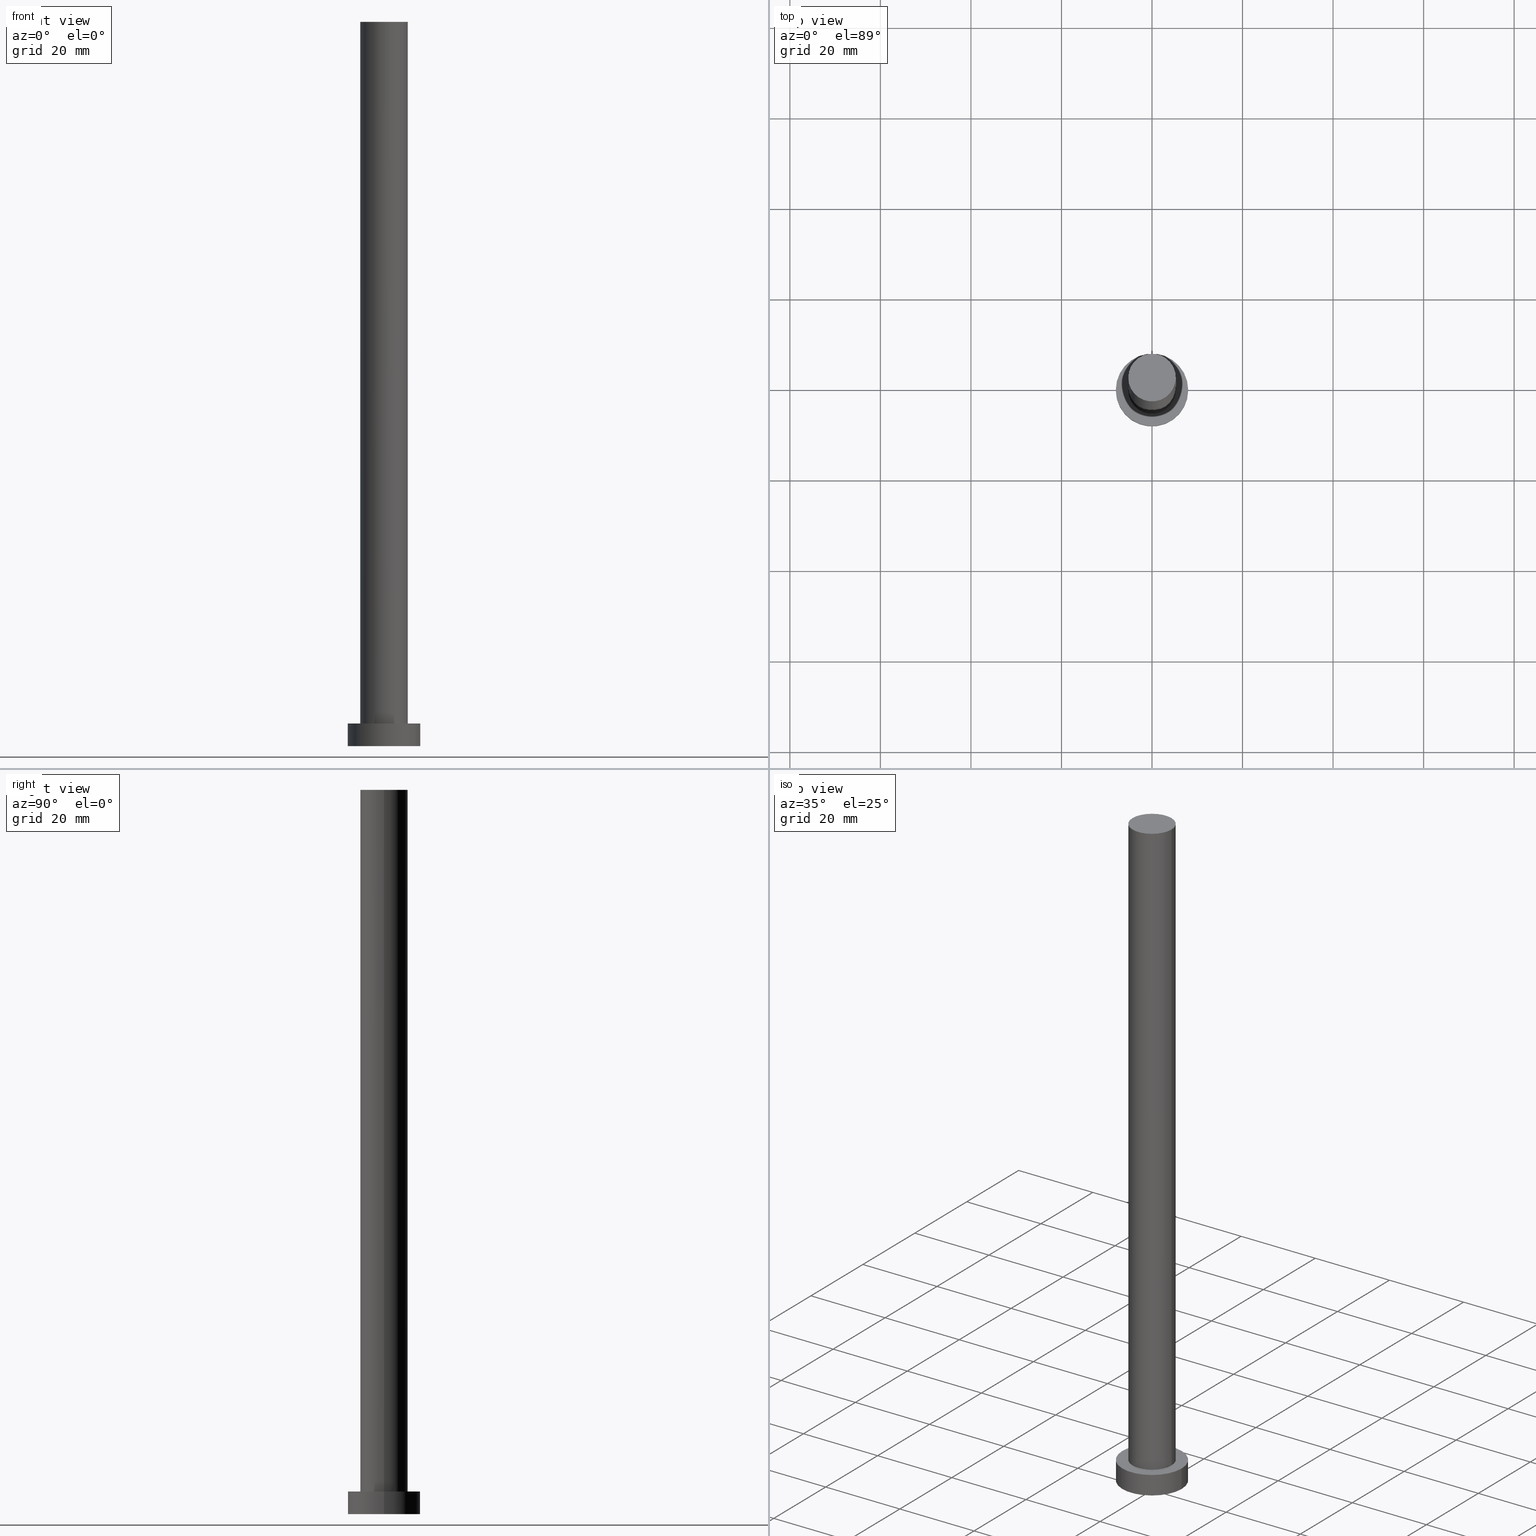
[diagram: canonical four-view strip — front | top / right | iso, engineering-drawing reading convention]
A machine part, canonical four-view strip (front | top / right | iso — engineering-drawing reading convention). The complete STEP part file that produces these views, byte-faithful:
ISO-10303-21;
HEADER;
FILE_DESCRIPTION (( 'STEP AP203' ),
    '1' );
FILE_NAME ('19fd.STEP',
    '2023-02-13T11:12:26',
    ( '' ),
    ( '' ),
    'SwSTEP 2.0',
    'SolidWorks 2019',
    '' );
FILE_SCHEMA (( 'CONFIG_CONTROL_DESIGN' ));
ENDSEC;

DATA;
#1 = APPROVAL_ROLE ( '' ) ;
#2 = CARTESIAN_POINT ( 'NONE',  ( 8.000000000000000000, 9.797174393178825657E-16, 5.000000000000000000 ) ) ;
#3 = EDGE_CURVE ( 'NONE', #149, #250, #206, .T. ) ;
#4 = CARTESIAN_POINT ( 'NONE',  ( 0.000000000000000000, 0.000000000000000000, 160.0000000000000000 ) ) ;
#5 = LOCAL_TIME ( 12, 12, 26.00000000000000000, #114 ) ;
#6 = FACE_OUTER_BOUND ( 'NONE', #186, .T. ) ;
#7 = CARTESIAN_POINT ( 'NONE',  ( 0.000000000000000000, 0.000000000000000000, 160.0000000000000000 ) ) ;
#8 = ORIENTED_EDGE ( 'NONE', *, *, #13, .T. ) ;
#9 = CIRCLE ( 'NONE', #68, 5.250000000000000888 ) ;
#10 = DIRECTION ( 'NONE',  ( 1.000000000000000000, 0.000000000000000000, -0.000000000000000000 ) ) ;
#11 = DIRECTION ( 'NONE',  ( 0.000000000000000000, 0.000000000000000000, 1.000000000000000000 ) ) ;
#12 = SECURITY_CLASSIFICATION_LEVEL ( 'unclassified' ) ;
#13 = EDGE_CURVE ( 'NONE', #95, #154, #42, .T. ) ;
#14 = APPLICATION_PROTOCOL_DEFINITION ( 'international standard', 'config_control_design', 1994, #224 ) ;
#15 = CIRCLE ( 'NONE', #152, 8.000000000000000000 ) ;
#16 = PERSON_AND_ORGANIZATION_ROLE ( 'creator' ) ;
#17 = CC_DESIGN_DATE_AND_TIME_ASSIGNMENT ( #150, #109, ( #248 ) ) ;
#18 = APPROVAL_PERSON_ORGANIZATION ( #174, #225, #193 ) ;
#19 = LINE ( 'NONE', #189, #131 ) ;
#20 = DIRECTION ( 'NONE',  ( 0.000000000000000000, 0.000000000000000000, 1.000000000000000000 ) ) ;
#21 = DIRECTION ( 'NONE',  ( -1.000000000000000000, 0.000000000000000000, 0.000000000000000000 ) ) ;
#22 = FACE_OUTER_BOUND ( 'NONE', #128, .T. ) ;
#23 = VECTOR ( 'NONE', #144, 1000.000000000000000 ) ;
#24 = EDGE_CURVE ( 'NONE', #154, #95, #191, .T. ) ;
#25 = ADVANCED_FACE ( 'NONE', ( #99 ), #240, .T. ) ;
#26 = CARTESIAN_POINT ( 'NONE',  ( -5.250000000000000888, 0.000000000000000000, 160.0000000000000000 ) ) ;
#27 = CIRCLE ( 'NONE', #181, 5.250000000000000888 ) ;
#28 = EDGE_CURVE ( 'NONE', #56, #54, #27, .T. ) ;
#29 = ORIENTED_EDGE ( 'NONE', *, *, #24, .F. ) ;
#30 = PERSON_AND_ORGANIZATION ( #233, #88 ) ;
#31 = ORIENTED_EDGE ( 'NONE', *, *, #78, .F. ) ;
#32 = CARTESIAN_POINT ( 'NONE',  ( 0.000000000000000000, 0.000000000000000000, 0.000000000000000000 ) ) ;
#33 = ORIENTED_EDGE ( 'NONE', *, *, #182, .F. ) ;
#34 = CALENDAR_DATE ( 2023, 13, 2 ) ;
#35 =( GEOMETRIC_REPRESENTATION_CONTEXT ( 3 ) GLOBAL_UNCERTAINTY_ASSIGNED_CONTEXT ( ( #115 ) ) GLOBAL_UNIT_ASSIGNED_CONTEXT ( ( #165, #87, #245 ) ) REPRESENTATION_CONTEXT ( 'NONE', 'WORKASPACE' ) );
#36 = CC_DESIGN_PERSON_AND_ORGANIZATION_ASSIGNMENT ( #168, #172, ( #248 ) ) ;
#37 = DIRECTION ( 'NONE',  ( 1.000000000000000000, 0.000000000000000000, 0.000000000000000000 ) ) ;
#38 = ADVANCED_FACE ( 'NONE', ( #162 ), #81, .T. ) ;
#39 = DIRECTION ( 'NONE',  ( -0.000000000000000000, -0.000000000000000000, -1.000000000000000000 ) ) ;
#40 = AXIS2_PLACEMENT_3D ( 'NONE', #217, #39, #21 ) ;
#41 = DIRECTION ( 'NONE',  ( 1.000000000000000000, 0.000000000000000000, 0.000000000000000000 ) ) ;
#42 = CIRCLE ( 'NONE', #232, 8.000000000000000000 ) ;
#43 = ADVANCED_FACE ( 'NONE', ( #119 ), #179, .T. ) ;
#44 = CYLINDRICAL_SURFACE ( 'NONE', #159, 5.250000000000000888 ) ;
#45 = DIRECTION ( 'NONE',  ( -1.000000000000000000, 0.000000000000000000, 0.000000000000000000 ) ) ;
#46 = ORIENTED_EDGE ( 'NONE', *, *, #182, .T. ) ;
#47 = CARTESIAN_POINT ( 'NONE',  ( 0.000000000000000000, 0.000000000000000000, 5.000000000000000000 ) ) ;
#48 = EDGE_CURVE ( 'NONE', #250, #149, #9, .T. ) ;
#49 = ORIENTED_EDGE ( 'NONE', *, *, #3, .T. ) ;
#50 = AXIS2_PLACEMENT_3D ( 'NONE', #47, #11, #70 ) ;
#51 = LOCAL_TIME ( 12, 12, 26.00000000000000000, #234 ) ;
#52 = DIRECTION ( 'NONE',  ( 1.000000000000000000, 0.000000000000000000, 0.000000000000000000 ) ) ;
#53 = APPROVAL_ROLE ( '' ) ;
#54 = VERTEX_POINT ( 'NONE', #219 ) ;
#55 = PERSON_AND_ORGANIZATION ( #233, #88 ) ;
#56 = VERTEX_POINT ( 'NONE', #161 ) ;
#57 = CALENDAR_DATE ( 2023, 13, 2 ) ;
#58 = ORIENTED_EDGE ( 'NONE', *, *, #146, .T. ) ;
#59 = ORIENTED_EDGE ( 'NONE', *, *, #82, .F. ) ;
#60 = PERSON_AND_ORGANIZATION_ROLE ( 'design_supplier' ) ;
#61 = AXIS2_PLACEMENT_3D ( 'NONE', #163, #20, #203 ) ;
#62 = ORIENTED_EDGE ( 'NONE', *, *, #82, .T. ) ;
#63 = DIRECTION ( 'NONE',  ( 0.000000000000000000, 0.000000000000000000, 1.000000000000000000 ) ) ;
#64 = SECURITY_CLASSIFICATION ( '', '', #12 ) ;
#65 = VERTEX_POINT ( 'NONE', #2 ) ;
#66 = DIRECTION ( 'NONE',  ( 1.000000000000000000, 0.000000000000000000, 0.000000000000000000 ) ) ;
#67 = DIRECTION ( 'NONE',  ( 0.000000000000000000, 0.000000000000000000, 1.000000000000000000 ) ) ;
#68 = AXIS2_PLACEMENT_3D ( 'NONE', #141, #67, #41 ) ;
#69 = CC_DESIGN_APPROVAL ( #122, ( #215 ) ) ;
#70 = DIRECTION ( 'NONE',  ( 1.000000000000000000, 0.000000000000000000, 0.000000000000000000 ) ) ;
#71 = VECTOR ( 'NONE', #201, 1000.000000000000000 ) ;
#72 = CARTESIAN_POINT ( 'NONE',  ( -8.000000000000000000, 0.000000000000000000, 5.000000000000000000 ) ) ;
#73 = CARTESIAN_POINT ( 'NONE',  ( -8.000000000000000000, 0.000000000000000000, 0.000000000000000000 ) ) ;
#74 = COORDINATED_UNIVERSAL_TIME_OFFSET ( 1, 0, .AHEAD. ) ;
#75 = DATE_TIME_ROLE ( 'classification_date' ) ;
#76 = DIRECTION ( 'NONE',  ( 0.000000000000000000, 0.000000000000000000, 1.000000000000000000 ) ) ;
#77 = DATE_AND_TIME ( #132, #51 ) ;
#78 = EDGE_CURVE ( 'NONE', #250, #56, #120, .T. ) ;
#79 = CARTESIAN_POINT ( 'NONE',  ( -5.250000000000000888, 0.000000000000000000, 160.0000000000000000 ) ) ;
#80 = CC_DESIGN_DATE_AND_TIME_ASSIGNMENT ( #196, #75, ( #64 ) ) ;
#81 = CYLINDRICAL_SURFACE ( 'NONE', #243, 5.250000000000000888 ) ;
#82 = EDGE_CURVE ( 'NONE', #249, #65, #15, .T. ) ;
#83 = DIRECTION ( 'NONE',  ( 1.000000000000000000, 0.000000000000000000, 0.000000000000000000 ) ) ;
#84 = CARTESIAN_POINT ( 'NONE',  ( 0.000000000000000000, 0.000000000000000000, 0.000000000000000000 ) ) ;
#85 = ADVANCED_BREP_SHAPE_REPRESENTATION ( '19fd', ( #241, #107 ), #35 ) ;
#86 = DIRECTION ( 'NONE',  ( 0.000000000000000000, 0.000000000000000000, 1.000000000000000000 ) ) ;
#87 =( NAMED_UNIT ( * ) PLANE_ANGLE_UNIT ( ) SI_UNIT ( $, .RADIAN. ) );
#88 = ORGANIZATION ( 'NEUR�EN�', 'NEUR�EN�', '' ) ;
#89 = PLANE ( 'NONE',  #244 ) ;
#90 = ORIENTED_EDGE ( 'NONE', *, *, #197, .F. ) ;
#91 = PERSON_AND_ORGANIZATION ( #233, #88 ) ;
#92 = DATE_AND_TIME ( #231, #5 ) ;
#93 = EDGE_LOOP ( 'NONE', ( #237, #59, #106, #208 ) ) ;
#94 = DIRECTION ( 'NONE',  ( 1.000000000000000000, 0.000000000000000000, 0.000000000000000000 ) ) ;
#95 = VERTEX_POINT ( 'NONE', #238 ) ;
#96 = AXIS2_PLACEMENT_3D ( 'NONE', #160, #136, #199 ) ;
#97 = DIRECTION ( 'NONE',  ( -1.000000000000000000, 0.000000000000000000, 0.000000000000000000 ) ) ;
#98 = CC_DESIGN_APPROVAL ( #225, ( #248 ) ) ;
#99 = FACE_OUTER_BOUND ( 'NONE', #93, .T. ) ;
#100 = DIRECTION ( 'NONE',  ( 1.000000000000000000, 0.000000000000000000, 0.000000000000000000 ) ) ;
#101 = LOCAL_TIME ( 12, 12, 26.00000000000000000, #236 ) ;
#102 = FACE_OUTER_BOUND ( 'NONE', #151, .T. ) ;
#103 = ADVANCED_FACE ( 'NONE', ( #6 ), #183, .T. ) ;
#104 = DIRECTION ( 'NONE',  ( -0.000000000000000000, -0.000000000000000000, -1.000000000000000000 ) ) ;
#105 = CIRCLE ( 'NONE', #50, 5.250000000000000888 ) ;
#106 = ORIENTED_EDGE ( 'NONE', *, *, #197, .T. ) ;
#107 = AXIS2_PLACEMENT_3D ( 'NONE', #32, #76, #94 ) ;
#108 = APPROVAL_DATE_TIME ( #77, #122 ) ;
#109 = DATE_TIME_ROLE ( 'creation_date' ) ;
#110 = ORIENTED_EDGE ( 'NONE', *, *, #139, .T. ) ;
#111 = CC_DESIGN_APPROVAL ( #129, ( #64 ) ) ;
#112 = APPROVAL_DATE_TIME ( #133, #129 ) ;
#113 = ADVANCED_FACE ( 'NONE', ( #102 ), #143, .F. ) ;
#114 = COORDINATED_UNIVERSAL_TIME_OFFSET ( 1, 0, .AHEAD. ) ;
#115 = UNCERTAINTY_MEASURE_WITH_UNIT (LENGTH_MEASURE( 1.000000000000000082E-05 ), #165, 'distance_accuracy_value', 'NONE');
#116 = DIRECTION ( 'NONE',  ( -1.000000000000000000, 0.000000000000000000, 0.000000000000000000 ) ) ;
#117 = DIRECTION ( 'NONE',  ( -0.000000000000000000, -0.000000000000000000, -1.000000000000000000 ) ) ;
#118 = CARTESIAN_POINT ( 'NONE',  ( 0.000000000000000000, 0.000000000000000000, 5.000000000000000000 ) ) ;
#119 = FACE_OUTER_BOUND ( 'NONE', #184, .T. ) ;
#120 = LINE ( 'NONE', #79, #71 ) ;
#121 = CARTESIAN_POINT ( 'NONE',  ( 0.000000000000000000, 0.000000000000000000, 5.000000000000000000 ) ) ;
#122 = APPROVAL ( #148, 'NEUR�EN�' ) ;
#123 = LINE ( 'NONE', #125, #23 ) ;
#124 = ORIENTED_EDGE ( 'NONE', *, *, #13, .F. ) ;
#125 = CARTESIAN_POINT ( 'NONE',  ( 5.250000000000000888, 6.429395695523605139E-16, 160.0000000000000000 ) ) ;
#126 = ORIENTED_EDGE ( 'NONE', *, *, #146, .F. ) ;
#127 = LINE ( 'NONE', #72, #137 ) ;
#128 = EDGE_LOOP ( 'NONE', ( #62, #46 ) ) ;
#129 = APPROVAL ( #153, 'NEUR�EN�' ) ;
#130 = PERSON_AND_ORGANIZATION ( #233, #88 ) ;
#131 = VECTOR ( 'NONE', #226, 1000.000000000000000 ) ;
#132 = CALENDAR_DATE ( 2023, 13, 2 ) ;
#133 = DATE_AND_TIME ( #57, #101 ) ;
#134 = CC_DESIGN_PERSON_AND_ORGANIZATION_ASSIGNMENT ( #130, #60, ( #215 ) ) ;
#135 = EDGE_LOOP ( 'NONE', ( #214, #126 ) ) ;
#136 = DIRECTION ( 'NONE',  ( 0.000000000000000000, 0.000000000000000000, 1.000000000000000000 ) ) ;
#137 = VECTOR ( 'NONE', #104, 1000.000000000000000 ) ;
#138 = AXIS2_PLACEMENT_3D ( 'NONE', #121, #246, #52 ) ;
#139 = EDGE_CURVE ( 'NONE', #65, #95, #19, .T. ) ;
#140 = PRODUCT_DEFINITION_SHAPE ( 'NONE', 'NONE',  #248 ) ;
#141 = CARTESIAN_POINT ( 'NONE',  ( 0.000000000000000000, 0.000000000000000000, 160.0000000000000000 ) ) ;
#142 = DIRECTION ( 'NONE',  ( -0.000000000000000000, -0.000000000000000000, -1.000000000000000000 ) ) ;
#143 = PLANE ( 'NONE',  #96 ) ;
#144 = DIRECTION ( 'NONE',  ( -0.000000000000000000, -0.000000000000000000, -1.000000000000000000 ) ) ;
#145 = APPLICATION_PROTOCOL_DEFINITION ( 'international standard', 'config_control_design', 1994, #209 ) ;
#146 = EDGE_CURVE ( 'NONE', #54, #56, #105, .T. ) ;
#147 = CLOSED_SHELL ( 'NONE', ( #38, #103, #25, #211, #113, #228, #43 ) ) ;
#148 = APPROVAL_STATUS ( 'not_yet_approved' ) ;
#149 = VERTEX_POINT ( 'NONE', #166 ) ;
#150 = DATE_AND_TIME ( #176, #178 ) ;
#151 = EDGE_LOOP ( 'NONE', ( #29, #124 ) ) ;
#152 = AXIS2_PLACEMENT_3D ( 'NONE', #239, #86, #100 ) ;
#153 = APPROVAL_STATUS ( 'not_yet_approved' ) ;
#154 = VERTEX_POINT ( 'NONE', #73 ) ;
#155 = PERSON_AND_ORGANIZATION ( #233, #88 ) ;
#156 = COORDINATED_UNIVERSAL_TIME_OFFSET ( 1, 0, .AHEAD. ) ;
#157 = ORIENTED_EDGE ( 'NONE', *, *, #48, .F. ) ;
#158 = AXIS2_PLACEMENT_3D ( 'NONE', #4, #180, #66 ) ;
#159 = AXIS2_PLACEMENT_3D ( 'NONE', #204, #207, #45 ) ;
#160 = CARTESIAN_POINT ( 'NONE',  ( 0.000000000000000000, 0.000000000000000000, 0.000000000000000000 ) ) ;
#161 = CARTESIAN_POINT ( 'NONE',  ( -5.250000000000000888, 0.000000000000000000, 5.000000000000000000 ) ) ;
#162 = FACE_OUTER_BOUND ( 'NONE', #223, .T. ) ;
#163 = CARTESIAN_POINT ( 'NONE',  ( 0.000000000000000000, 0.000000000000000000, 0.000000000000000000 ) ) ;
#164 = DIRECTION ( 'NONE',  ( 0.000000000000000000, 0.000000000000000000, 1.000000000000000000 ) ) ;
#165 =( LENGTH_UNIT ( ) NAMED_UNIT ( * ) SI_UNIT ( .MILLI., .METRE. ) );
#166 = CARTESIAN_POINT ( 'NONE',  ( 5.250000000000000888, 6.429395695523605139E-16, 160.0000000000000000 ) ) ;
#167 = ORIENTED_EDGE ( 'NONE', *, *, #3, .F. ) ;
#168 = PERSON_AND_ORGANIZATION ( #233, #88 ) ;
#169 = PERSON_AND_ORGANIZATION_ROLE ( 'classification_officer' ) ;
#170 = APPROVAL_PERSON_ORGANIZATION ( #55, #122, #53 ) ;
#171 = APPROVAL_PERSON_ORGANIZATION ( #155, #129, #1 ) ;
#172 = PERSON_AND_ORGANIZATION_ROLE ( 'creator' ) ;
#173 = ORIENTED_EDGE ( 'NONE', *, *, #78, .T. ) ;
#174 = PERSON_AND_ORGANIZATION ( #233, #88 ) ;
#175 = CC_DESIGN_PERSON_AND_ORGANIZATION_ASSIGNMENT ( #30, #16, ( #215 ) ) ;
#176 = CALENDAR_DATE ( 2023, 13, 2 ) ;
#177 = AXIS2_PLACEMENT_3D ( 'NONE', #200, #164, #220 ) ;
#178 = LOCAL_TIME ( 12, 12, 26.00000000000000000, #74 ) ;
#179 = PLANE ( 'NONE',  #177 ) ;
#180 = DIRECTION ( 'NONE',  ( 0.000000000000000000, 0.000000000000000000, 1.000000000000000000 ) ) ;
#181 = AXIS2_PLACEMENT_3D ( 'NONE', #218, #63, #83 ) ;
#182 = EDGE_CURVE ( 'NONE', #65, #249, #253, .T. ) ;
#183 = CYLINDRICAL_SURFACE ( 'NONE', #40, 8.000000000000000000 ) ;
#184 = EDGE_LOOP ( 'NONE', ( #230, #49 ) ) ;
#185 = CARTESIAN_POINT ( 'NONE',  ( -8.000000000000000000, 0.000000000000000000, 5.000000000000000000 ) ) ;
#186 = EDGE_LOOP ( 'NONE', ( #33, #110, #8, #90 ) ) ;
#187 = CARTESIAN_POINT ( 'NONE',  ( 0.000000000000000000, 0.000000000000000000, 5.000000000000000000 ) ) ;
#188 = AXIS2_PLACEMENT_3D ( 'NONE', #118, #142, #97 ) ;
#189 = CARTESIAN_POINT ( 'NONE',  ( 8.000000000000000000, 9.797174393178825657E-16, 5.000000000000000000 ) ) ;
#190 = ORIENTED_EDGE ( 'NONE', *, *, #194, .T. ) ;
#191 = CIRCLE ( 'NONE', #61, 8.000000000000000000 ) ;
#192 = CC_DESIGN_PERSON_AND_ORGANIZATION_ASSIGNMENT ( #91, #169, ( #64 ) ) ;
#193 = APPROVAL_ROLE ( '' ) ;
#194 = EDGE_CURVE ( 'NONE', #149, #54, #123, .T. ) ;
#195 = PRODUCT ( '19fd', '19fd', '', ( #252 ) ) ;
#196 = DATE_AND_TIME ( #34, #247 ) ;
#197 = EDGE_CURVE ( 'NONE', #249, #154, #127, .T. ) ;
#198 = DIRECTION ( 'NONE',  ( 0.000000000000000000, 0.000000000000000000, 1.000000000000000000 ) ) ;
#199 = DIRECTION ( 'NONE',  ( 1.000000000000000000, 0.000000000000000000, -0.000000000000000000 ) ) ;
#200 = CARTESIAN_POINT ( 'NONE',  ( 0.000000000000000000, 0.000000000000000000, 160.0000000000000000 ) ) ;
#201 = DIRECTION ( 'NONE',  ( -0.000000000000000000, -0.000000000000000000, -1.000000000000000000 ) ) ;
#202 = PRODUCT_RELATED_PRODUCT_CATEGORY ( 'detail', '', ( #195 ) ) ;
#203 = DIRECTION ( 'NONE',  ( 1.000000000000000000, 0.000000000000000000, 0.000000000000000000 ) ) ;
#204 = CARTESIAN_POINT ( 'NONE',  ( 0.000000000000000000, 0.000000000000000000, 160.0000000000000000 ) ) ;
#205 = ORIENTED_EDGE ( 'NONE', *, *, #194, .F. ) ;
#206 = CIRCLE ( 'NONE', #158, 5.250000000000000888 ) ;
#207 = DIRECTION ( 'NONE',  ( -0.000000000000000000, -0.000000000000000000, -1.000000000000000000 ) ) ;
#208 = ORIENTED_EDGE ( 'NONE', *, *, #24, .T. ) ;
#209 = APPLICATION_CONTEXT ( 'configuration controlled 3d designs of mechanical parts and assemblies' ) ;
#210 = FACE_OUTER_BOUND ( 'NONE', #213, .T. ) ;
#211 = ADVANCED_FACE ( 'NONE', ( #222, #22 ), #89, .T. ) ;
#212 = PERSON_AND_ORGANIZATION ( #233, #88 ) ;
#213 = EDGE_LOOP ( 'NONE', ( #205, #157, #173, #255 ) ) ;
#214 = ORIENTED_EDGE ( 'NONE', *, *, #28, .F. ) ;
#215 = PRODUCT_DEFINITION_FORMATION_WITH_SPECIFIED_SOURCE ( 'LIBOVOLN�', '', #195, .NOT_KNOWN. ) ;
#216 = DESIGN_CONTEXT ( 'detailed design', #224, 'design' ) ;
#217 = CARTESIAN_POINT ( 'NONE',  ( 0.000000000000000000, 0.000000000000000000, 5.000000000000000000 ) ) ;
#218 = CARTESIAN_POINT ( 'NONE',  ( 0.000000000000000000, 0.000000000000000000, 5.000000000000000000 ) ) ;
#219 = CARTESIAN_POINT ( 'NONE',  ( 5.250000000000000888, 6.429395695523605139E-16, 5.000000000000000000 ) ) ;
#220 = DIRECTION ( 'NONE',  ( 1.000000000000000000, 0.000000000000000000, -0.000000000000000000 ) ) ;
#221 = DIRECTION ( 'NONE',  ( 0.000000000000000000, 0.000000000000000000, 1.000000000000000000 ) ) ;
#222 = FACE_BOUND ( 'NONE', #135, .T. ) ;
#223 = EDGE_LOOP ( 'NONE', ( #167, #190, #58, #31 ) ) ;
#224 = APPLICATION_CONTEXT ( 'configuration controlled 3d designs of mechanical parts and assemblies' ) ;
#225 = APPROVAL ( #251, 'NEUR�EN�' ) ;
#226 = DIRECTION ( 'NONE',  ( -0.000000000000000000, -0.000000000000000000, -1.000000000000000000 ) ) ;
#227 = CC_DESIGN_SECURITY_CLASSIFICATION ( #64, ( #215 ) ) ;
#228 = ADVANCED_FACE ( 'NONE', ( #210 ), #44, .T. ) ;
#229 = APPROVAL_DATE_TIME ( #92, #225 ) ;
#230 = ORIENTED_EDGE ( 'NONE', *, *, #48, .T. ) ;
#231 = CALENDAR_DATE ( 2023, 13, 2 ) ;
#232 = AXIS2_PLACEMENT_3D ( 'NONE', #84, #198, #37 ) ;
#233 = PERSON ( 'NEUR�EN�', 'NEUR�EN�', 'NEUR�EN�', ('NEUR�EN�'), ('NEUR�EN�'), ('NEUR�EN�') ) ;
#234 = COORDINATED_UNIVERSAL_TIME_OFFSET ( 1, 0, .AHEAD. ) ;
#235 = SHAPE_DEFINITION_REPRESENTATION ( #140, #85 ) ;
#236 = COORDINATED_UNIVERSAL_TIME_OFFSET ( 1, 0, .AHEAD. ) ;
#237 = ORIENTED_EDGE ( 'NONE', *, *, #139, .F. ) ;
#238 = CARTESIAN_POINT ( 'NONE',  ( 8.000000000000000000, 9.797174393178825657E-16, 0.000000000000000000 ) ) ;
#239 = CARTESIAN_POINT ( 'NONE',  ( 0.000000000000000000, 0.000000000000000000, 5.000000000000000000 ) ) ;
#240 = CYLINDRICAL_SURFACE ( 'NONE', #188, 8.000000000000000000 ) ;
#241 = MANIFOLD_SOLID_BREP ( 'P�idat vysunut�m3', #147 ) ;
#242 = CC_DESIGN_PERSON_AND_ORGANIZATION_ASSIGNMENT ( #212, #254, ( #195 ) ) ;
#243 = AXIS2_PLACEMENT_3D ( 'NONE', #7, #117, #116 ) ;
#244 = AXIS2_PLACEMENT_3D ( 'NONE', #187, #221, #10 ) ;
#245 =( NAMED_UNIT ( * ) SI_UNIT ( $, .STERADIAN. ) SOLID_ANGLE_UNIT ( ) );
#246 = DIRECTION ( 'NONE',  ( 0.000000000000000000, 0.000000000000000000, 1.000000000000000000 ) ) ;
#247 = LOCAL_TIME ( 12, 12, 26.00000000000000000, #156 ) ;
#248 = PRODUCT_DEFINITION ( 'NEZN�M�', '', #215, #216 ) ;
#249 = VERTEX_POINT ( 'NONE', #185 ) ;
#250 = VERTEX_POINT ( 'NONE', #26 ) ;
#251 = APPROVAL_STATUS ( 'not_yet_approved' ) ;
#252 = MECHANICAL_CONTEXT ( 'NONE', #209, 'mechanical' ) ;
#253 = CIRCLE ( 'NONE', #138, 8.000000000000000000 ) ;
#254 = PERSON_AND_ORGANIZATION_ROLE ( 'design_owner' ) ;
#255 = ORIENTED_EDGE ( 'NONE', *, *, #28, .T. ) ;
ENDSEC;
END-ISO-10303-21;
